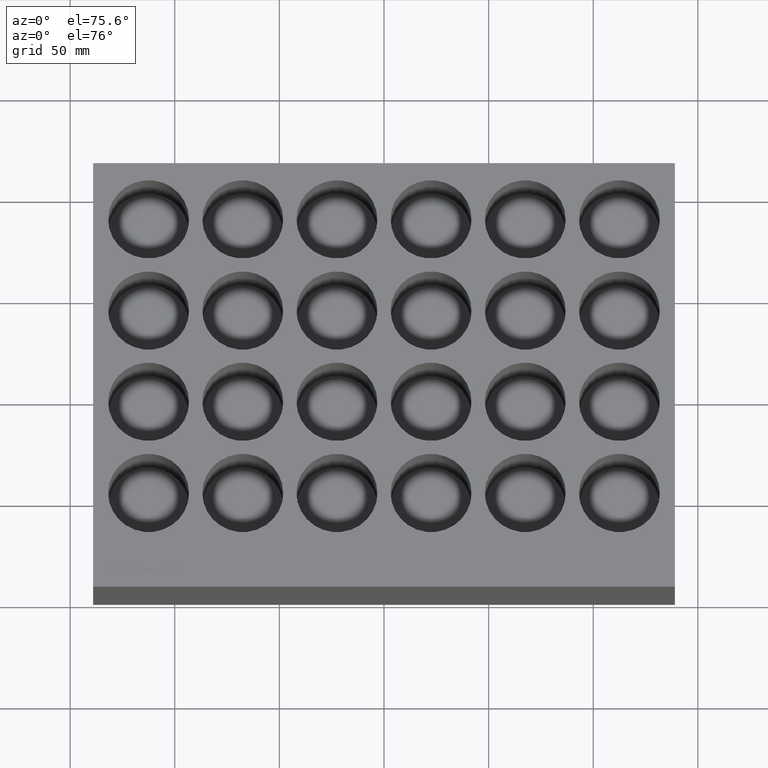
[diagram: clean part render]
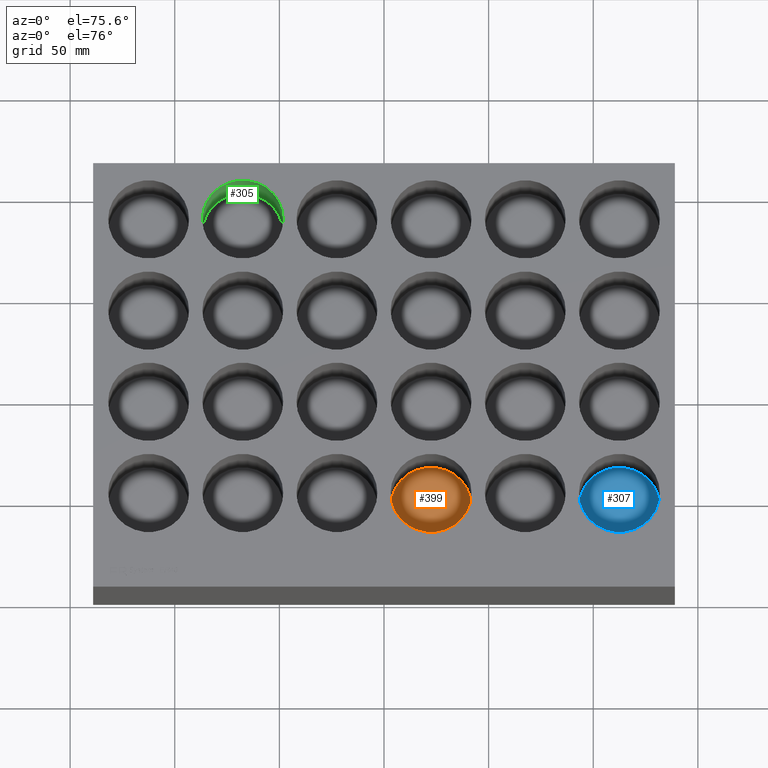
[diagram: same view with three faces highlighted in distinct colors, each labeled with its STEP entity id]
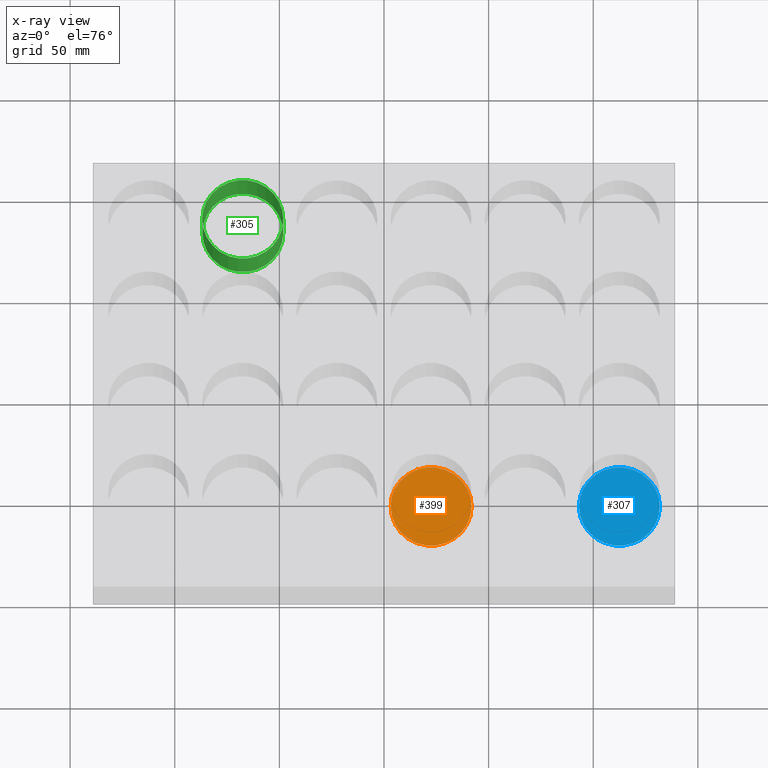
[diagram: x-ray of the same camera — body ghosted, the three highlighted faces saturated]
A machine part, auxiliary view with three faces highlighted in distinct colors.
The next image is the same camera in x-ray (body ghosted, the three faces saturated) — at least one of them is partly hidden behind the body in this view.
Their STEP definitions:

[orange] entity #399 — the highlighted planar face has unit normal (0, 0, -1).
#399 = ADVANCED_FACE( '', ( #885 ), #886, .F. );
#885 = FACE_OUTER_BOUND( '', #1499, .T. );
#886 = PLANE( '', #1500 );
#1499 = EDGE_LOOP( '', ( #2823 ) );
#1500 = AXIS2_PLACEMENT_3D( '', #2824, #2825, #2826 );
#2823 = ORIENTED_EDGE( '', *, *, #3851, .F. );
#2824 = CARTESIAN_POINT( '', ( 22.5000000000000, 46.2000000000000, -26.0000000000000 ) );
#2825 = DIRECTION( '', ( 0.000000000000000, 0.000000000000000, -1.00000000000000 ) );
#2826 = DIRECTION( '', ( -1.00000000000000, 0.000000000000000, 0.000000000000000 ) );
#3851 = EDGE_CURVE( '', #4487, #4487, #4488, .T. );
#4487 = VERTEX_POINT( '', #5740 );
#4488 = CIRCLE( '', #5741, 19.3500000000000 );
#5740 = CARTESIAN_POINT( '', ( 41.8500000000000, 46.2000000000000, -26.0000000000000 ) );
#5741 = AXIS2_PLACEMENT_3D( '', #7313, #7314, #7315 );
#7313 = CARTESIAN_POINT( '', ( 22.5000000000000, 46.2000000000000, -26.0000000000000 ) );
#7314 = DIRECTION( '', ( 0.000000000000000, 0.000000000000000, -1.00000000000000 ) );
#7315 = DIRECTION( '', ( 1.00000000000000, 0.000000000000000, 0.000000000000000 ) );

[blue] entity #307 — the highlighted planar face has unit normal (0, 0, -1).
#307 = ADVANCED_FACE( '', ( #738 ), #739, .F. );
#738 = FACE_OUTER_BOUND( '', #1345, .T. );
#739 = PLANE( '', #1346 );
#1345 = EDGE_LOOP( '', ( #2362 ) );
#1346 = AXIS2_PLACEMENT_3D( '', #2363, #2364, #2365 );
#2362 = ORIENTED_EDGE( '', *, *, #3929, .F. );
#2363 = CARTESIAN_POINT( '', ( 112.500000000000, 46.2000000000000, -26.0000000000000 ) );
#2364 = DIRECTION( '', ( 0.000000000000000, 0.000000000000000, -1.00000000000000 ) );
#2365 = DIRECTION( '', ( -1.00000000000000, 0.000000000000000, 0.000000000000000 ) );
#3929 = EDGE_CURVE( '', #4608, #4608, #4609, .T. );
#4608 = VERTEX_POINT( '', #6011 );
#4609 = CIRCLE( '', #6012, 19.3500000000000 );
#6011 = CARTESIAN_POINT( '', ( 131.850000000000, 46.2000000000000, -26.0000000000000 ) );
#6012 = AXIS2_PLACEMENT_3D( '', #7388, #7389, #7390 );
#7388 = CARTESIAN_POINT( '', ( 112.500000000000, 46.2000000000000, -26.0000000000000 ) );
#7389 = DIRECTION( '', ( 0.000000000000000, 0.000000000000000, -1.00000000000000 ) );
#7390 = DIRECTION( '', ( 1.00000000000000, 0.000000000000000, 0.000000000000000 ) );

[green] entity #305 — the highlighted cylindrical surface (bore or boss wall) has radius 19.35 mm, axis along (-0, -0, -1).
#305 = ADVANCED_FACE( '', ( #734, #735 ), #736, .F. );
#734 = FACE_OUTER_BOUND( '', #1341, .T. );
#735 = FACE_OUTER_BOUND( '', #1342, .T. );
#736 = CYLINDRICAL_SURFACE( '', #1343, 19.3500000000000 );
#1341 = EDGE_LOOP( '', ( #2356 ) );
#1342 = EDGE_LOOP( '', ( #2357 ) );
#1343 = AXIS2_PLACEMENT_3D( '', #2358, #2359, #2360 );
#2356 = ORIENTED_EDGE( '', *, *, #3846, .T. );
#2357 = ORIENTED_EDGE( '', *, *, #3927, .F. );
#2358 = CARTESIAN_POINT( '', ( -67.5000000000000, 181.200000000000, -26.0000000000000 ) );
#2359 = DIRECTION( '', ( -0.000000000000000, -0.000000000000000, -1.00000000000000 ) );
#2360 = DIRECTION( '', ( 1.00000000000000, 0.000000000000000, 0.000000000000000 ) );
#3846 = EDGE_CURVE( '', #4479, #4479, #4480, .T. );
#3927 = EDGE_CURVE( '', #4605, #4605, #4606, .T. );
#4479 = VERTEX_POINT( '', #5718 );
#4480 = CIRCLE( '', #5719, 19.3500000000000 );
#4605 = VERTEX_POINT( '', #6008 );
#4606 = CIRCLE( '', #6009, 19.3500000000000 );
#5718 = CARTESIAN_POINT( '', ( -48.1500000000000, 181.200000000000, -26.0000000000000 ) );
#5719 = AXIS2_PLACEMENT_3D( '', #7309, #7310, #7311 );
#6008 = CARTESIAN_POINT( '', ( -48.1500000000000, 181.200000000000, 0.000000000000000 ) );
#6009 = AXIS2_PLACEMENT_3D( '', #7385, #7386, #7387 );
#7309 = CARTESIAN_POINT( '', ( -67.5000000000000, 181.200000000000, -26.0000000000000 ) );
#7310 = DIRECTION( '', ( 0.000000000000000, 0.000000000000000, -1.00000000000000 ) );
#7311 = DIRECTION( '', ( 1.00000000000000, 0.000000000000000, 0.000000000000000 ) );
#7385 = CARTESIAN_POINT( '', ( -67.5000000000000, 181.200000000000, 0.000000000000000 ) );
#7386 = DIRECTION( '', ( 0.000000000000000, 0.000000000000000, -1.00000000000000 ) );
#7387 = DIRECTION( '', ( 1.00000000000000, 0.000000000000000, 0.000000000000000 ) );